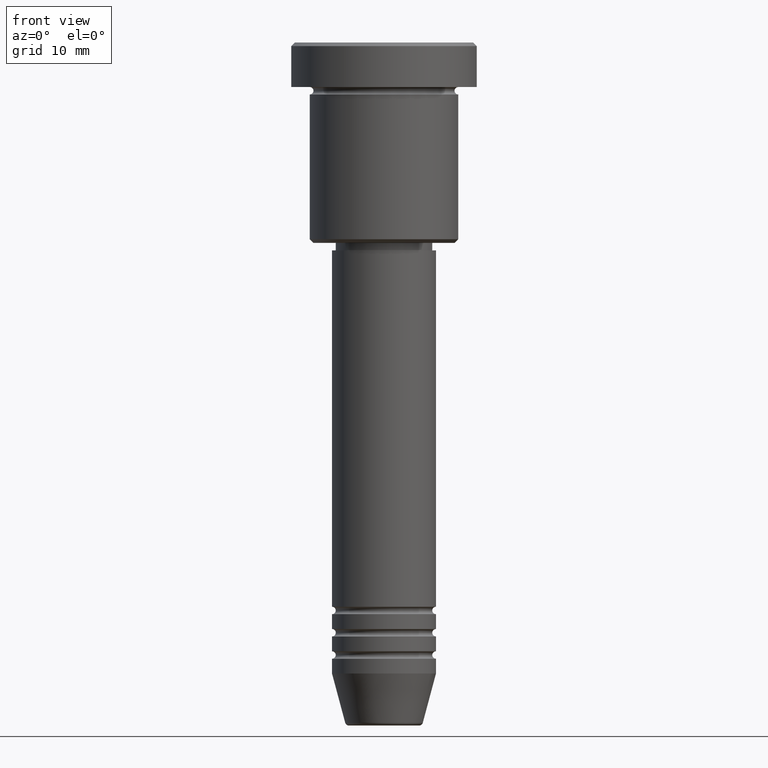
[diagram: clean part render]
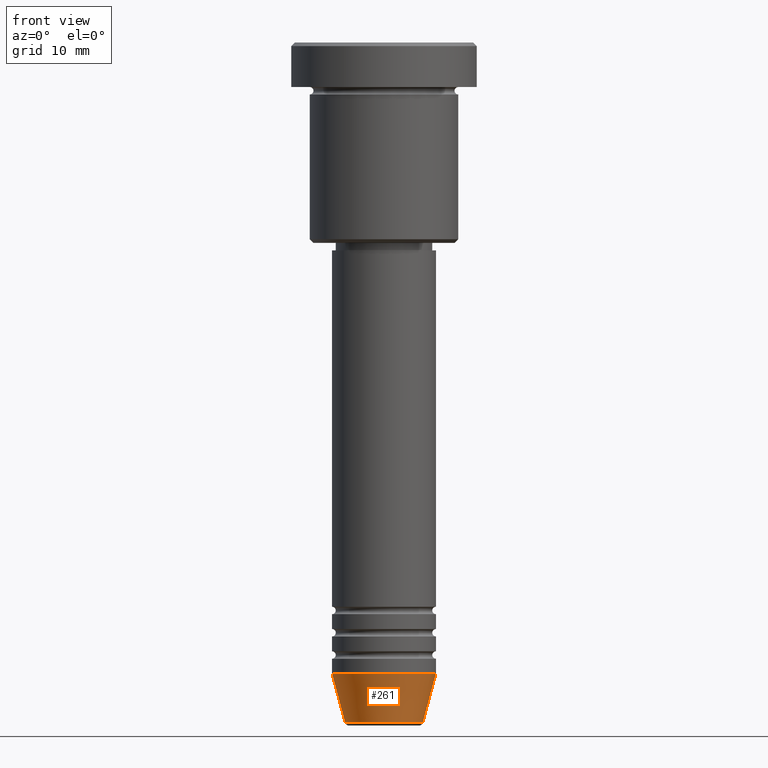
[diagram: same view with one face highlighted and labeled with its STEP entity id]
A machine part, front view. The second image highlights one B-rep face of the part: STEP entity #261.
In plain terms, the highlighted conical surface has half-angle 15 deg.
Its self-contained STEP definition (entity closure, byte-faithful):
#26 = ORIENTED_EDGE ( 'NONE', *, *, #177, .T. ) ;
#58 = AXIS2_PLACEMENT_3D ( 'NONE', #206, #1036, #385 ) ;
#72 = VERTEX_POINT ( 'NONE', #1129 ) ;
#105 = EDGE_CURVE ( 'NONE', #237, #72, #1157, .T. ) ;
#142 = DIRECTION ( 'NONE',  ( -0.000000000000000000, -0.000000000000000000, 1.000000000000000000 ) ) ;
#146 = DIRECTION ( 'NONE',  ( 0.2588190451025214056, 0.000000000000000000, 0.9659258262890680902 ) ) ;
#177 = EDGE_CURVE ( 'NONE', #952, #72, #809, .T. ) ;
#199 = ORIENTED_EDGE ( 'NONE', *, *, #105, .F. ) ;
#206 = CARTESIAN_POINT ( 'NONE',  ( 0.000000000000000000, 0.000000000000000000, -91.62940952255125637 ) ) ;
#228 = CARTESIAN_POINT ( 'NONE',  ( -5.223655072137187716, 7.484830028987059188E-16, -91.62940952255125637 ) ) ;
#237 = VERTEX_POINT ( 'NONE', #977 ) ;
#261 = ADVANCED_FACE ( 'NONE', ( #1069 ), #958, .T. ) ;
#265 = ORIENTED_EDGE ( 'NONE', *, *, #712, .T. ) ;
#342 = LINE ( 'NONE', #1136, #500 ) ;
#385 = DIRECTION ( 'NONE',  ( 1.000000000000000000, 0.000000000000000000, 0.000000000000000000 ) ) ;
#409 = CARTESIAN_POINT ( 'NONE',  ( 0.000000000000000000, 0.000000000000000000, -84.99999999999998579 ) ) ;
#428 = EDGE_LOOP ( 'NONE', ( #968, #265, #26, #199 ) ) ;
#500 = VECTOR ( 'NONE', #781, 1000.000000000000000 ) ;
#514 = VECTOR ( 'NONE', #146, 1000.000000000000000 ) ;
#525 = CARTESIAN_POINT ( 'NONE',  ( 0.000000000000000000, 0.000000000000000000, -84.99999999999998579 ) ) ;
#629 = DIRECTION ( 'NONE',  ( -0.000000000000000000, -0.000000000000000000, 1.000000000000000000 ) ) ;
#684 = DIRECTION ( 'NONE',  ( 1.000000000000000000, 0.000000000000000000, 0.000000000000000000 ) ) ;
#712 = EDGE_CURVE ( 'NONE', #780, #952, #867, .T. ) ;
#780 = VERTEX_POINT ( 'NONE', #228 ) ;
#781 = DIRECTION ( 'NONE',  ( -0.2588190451025214056, 3.169619151431772953E-17, 0.9659258262890680902 ) ) ;
#804 = DIRECTION ( 'NONE',  ( 1.000000000000000000, 0.000000000000000000, 0.000000000000000000 ) ) ;
#809 = LINE ( 'NONE', #1074, #514 ) ;
#867 = CIRCLE ( 'NONE', #58, 5.223655072137187716 ) ;
#952 = VERTEX_POINT ( 'NONE', #1018 ) ;
#958 = CONICAL_SURFACE ( 'NONE', #1122, 7.000000000000000000, 0.2617993877991501295 ) ;
#968 = ORIENTED_EDGE ( 'NONE', *, *, #1076, .F. ) ;
#977 = CARTESIAN_POINT ( 'NONE',  ( -7.000000000000000000, 8.572527594031473190E-16, -84.99999999999998579 ) ) ;
#1018 = CARTESIAN_POINT ( 'NONE',  ( 5.223655072137187716, 0.000000000000000000, -91.62940952255125637 ) ) ;
#1036 = DIRECTION ( 'NONE',  ( -0.000000000000000000, -0.000000000000000000, 1.000000000000000000 ) ) ;
#1069 = FACE_OUTER_BOUND ( 'NONE', #428, .T. ) ;
#1074 = CARTESIAN_POINT ( 'NONE',  ( 7.000000000000000000, 0.000000000000000000, -84.99999999999998579 ) ) ;
#1076 = EDGE_CURVE ( 'NONE', #780, #237, #342, .T. ) ;
#1081 = AXIS2_PLACEMENT_3D ( 'NONE', #409, #142, #684 ) ;
#1122 = AXIS2_PLACEMENT_3D ( 'NONE', #525, #629, #804 ) ;
#1129 = CARTESIAN_POINT ( 'NONE',  ( 7.000000000000000000, 0.000000000000000000, -84.99999999999998579 ) ) ;
#1136 = CARTESIAN_POINT ( 'NONE',  ( -7.000000000000000000, 8.572527594031473190E-16, -84.99999999999998579 ) ) ;
#1157 = CIRCLE ( 'NONE', #1081, 7.000000000000000000 ) ;